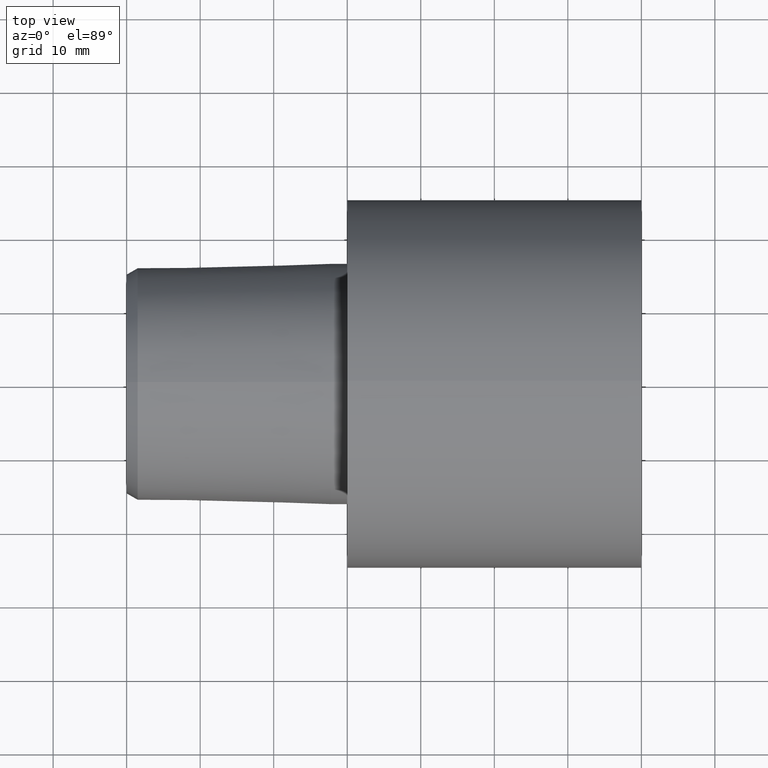
[diagram: clean part render]
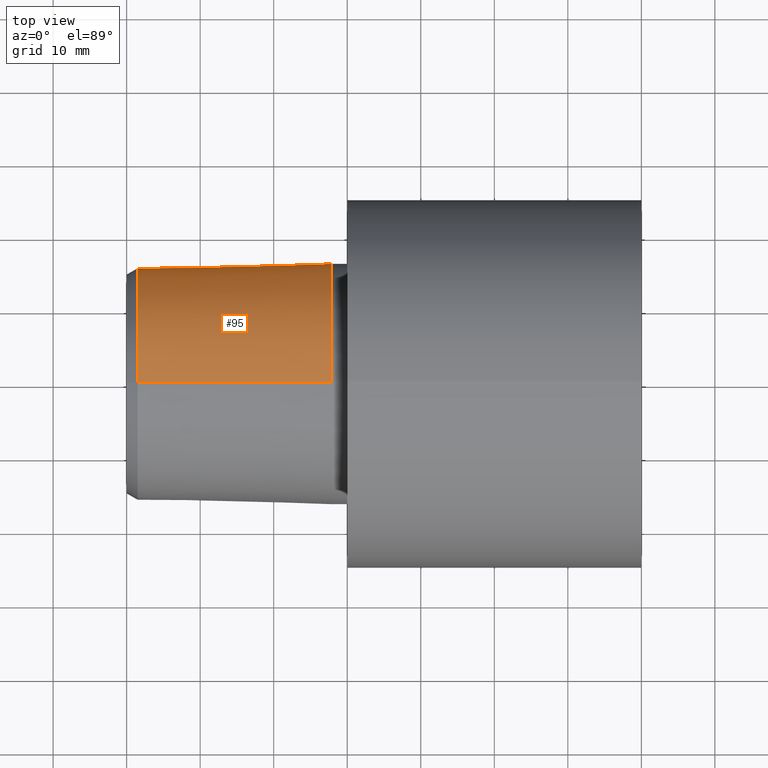
[diagram: same view with one face highlighted and labeled with its STEP entity id]
A machine part, top view. The second image highlights one B-rep face of the part: STEP entity #95.
In plain terms, the highlighted conical surface has half-angle 1.432 deg.
Its self-contained STEP definition (entity closure, byte-faithful):
#13 = AXIS2_PLACEMENT_3D ( 'NONE', #41, #203, #91 ) ;
#18 = VECTOR ( 'NONE', #308, 999.9999999999998863 ) ;
#41 = CARTESIAN_POINT ( 'NONE',  ( -2.199937517756064054, 0.000000000000000000, 0.000000000000000000 ) ) ;
#58 = AXIS2_PLACEMENT_3D ( 'NONE', #252, #165, #191 ) ;
#79 = CARTESIAN_POINT ( 'NONE',  ( -28.49999997092999848, 1.968157252004620712E-15, 15.74244386394270734 ) ) ;
#91 = DIRECTION ( 'NONE',  ( 0.000000000000000000, 0.000000000000000000, -1.000000000000000000 ) ) ;
#95 = ADVANCED_FACE ( 'NONE', ( #268 ), #173, .T. ) ;
#115 = EDGE_CURVE ( 'NONE', #206, #197, #345, .T. ) ;
#129 = CARTESIAN_POINT ( 'NONE',  ( -2.199937517756064054, 2.008421155135807723E-15, -16.40000330327199762 ) ) ;
#130 = CARTESIAN_POINT ( 'NONE',  ( -2.199937517756064054, 2.008421155135807723E-15, 16.40000330327199762 ) ) ;
#154 = DIRECTION ( 'NONE',  ( 0.9996875914402667540, 0.000000000000000000, -0.02499438977767824352 ) ) ;
#155 = VERTEX_POINT ( 'NONE', #352 ) ;
#165 = DIRECTION ( 'NONE',  ( -1.000000000000000000, 0.000000000000000000, 0.000000000000000000 ) ) ;
#170 = ORIENTED_EDGE ( 'NONE', *, *, #312, .T. ) ;
#173 = CONICAL_SURFACE ( 'NONE', #13, 16.40000330327199762, 0.02499699292341668252 ) ;
#191 = DIRECTION ( 'NONE',  ( 0.000000000000000000, 0.000000000000000000, 1.000000000000000000 ) ) ;
#196 = DIRECTION ( 'NONE',  ( 0.000000000000000000, 0.000000000000000000, 1.000000000000000000 ) ) ;
#197 = VERTEX_POINT ( 'NONE', #129 ) ;
#203 = DIRECTION ( 'NONE',  ( 1.000000000000000000, 0.000000000000000000, 0.000000000000000000 ) ) ;
#206 = VERTEX_POINT ( 'NONE', #238 ) ;
#216 = CARTESIAN_POINT ( 'NONE',  ( -28.49999997092999848, 0.000000000000000000, 0.000000000000000000 ) ) ;
#232 = ORIENTED_EDGE ( 'NONE', *, *, #279, .F. ) ;
#233 = CARTESIAN_POINT ( 'NONE',  ( -2.199937517756064054, 0.000000000000000000, -16.40000330327199762 ) ) ;
#238 = CARTESIAN_POINT ( 'NONE',  ( -28.49999997092999848, 0.000000000000000000, -15.74244386394270734 ) ) ;
#247 = EDGE_LOOP ( 'NONE', ( #232, #170, #320, #272 ) ) ;
#252 = CARTESIAN_POINT ( 'NONE',  ( -2.199937517756064054, 0.000000000000000000, 0.000000000000000000 ) ) ;
#268 = FACE_OUTER_BOUND ( 'NONE', #247, .T. ) ;
#271 = DIRECTION ( 'NONE',  ( -1.000000000000000000, 0.000000000000000000, 0.000000000000000000 ) ) ;
#272 = ORIENTED_EDGE ( 'NONE', *, *, #115, .F. ) ;
#279 = EDGE_CURVE ( 'NONE', #299, #206, #303, .T. ) ;
#299 = VERTEX_POINT ( 'NONE', #79 ) ;
#302 = LINE ( 'NONE', #130, #18 ) ;
#303 = CIRCLE ( 'NONE', #330, 15.74244386394270734 ) ;
#308 = DIRECTION ( 'NONE',  ( 0.9996875914402667540, 3.060929943787493688E-18, 0.02499438977767824352 ) ) ;
#312 = EDGE_CURVE ( 'NONE', #299, #155, #302, .T. ) ;
#320 = ORIENTED_EDGE ( 'NONE', *, *, #341, .T. ) ;
#330 = AXIS2_PLACEMENT_3D ( 'NONE', #216, #271, #196 ) ;
#338 = CIRCLE ( 'NONE', #58, 16.40000330327199762 ) ;
#340 = VECTOR ( 'NONE', #154, 999.9999999999998863 ) ;
#341 = EDGE_CURVE ( 'NONE', #155, #197, #338, .T. ) ;
#345 = LINE ( 'NONE', #233, #340 ) ;
#352 = CARTESIAN_POINT ( 'NONE',  ( -2.199937517756064054, 0.000000000000000000, 16.40000330327199762 ) ) ;